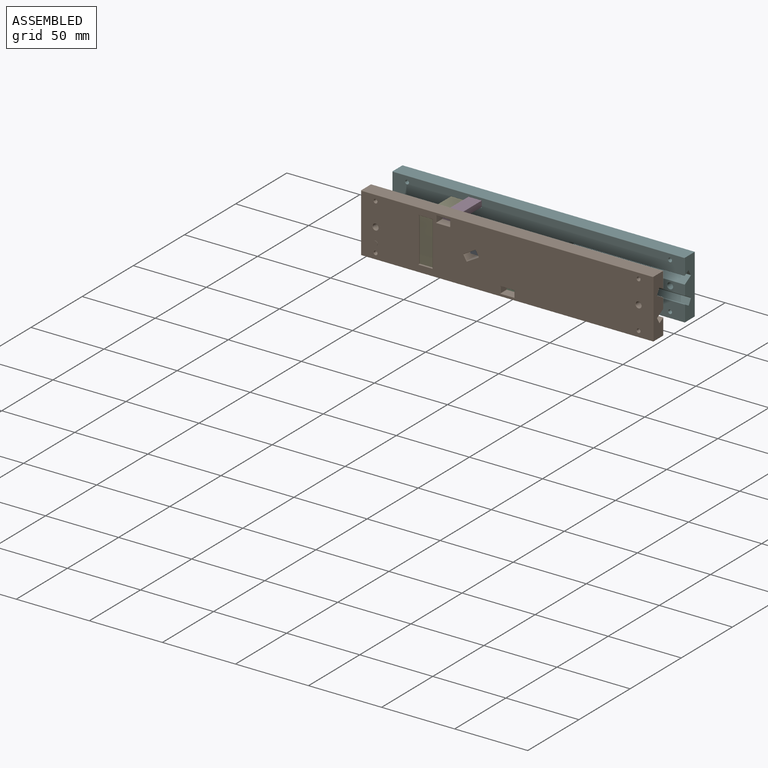
[diagram: assembled view]
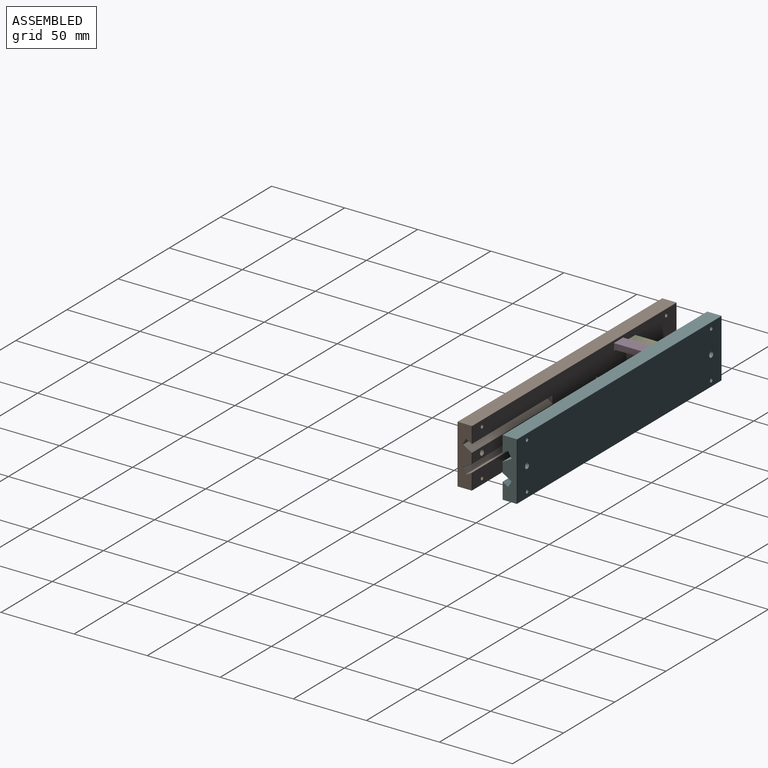
[diagram: assembled view, second angle]
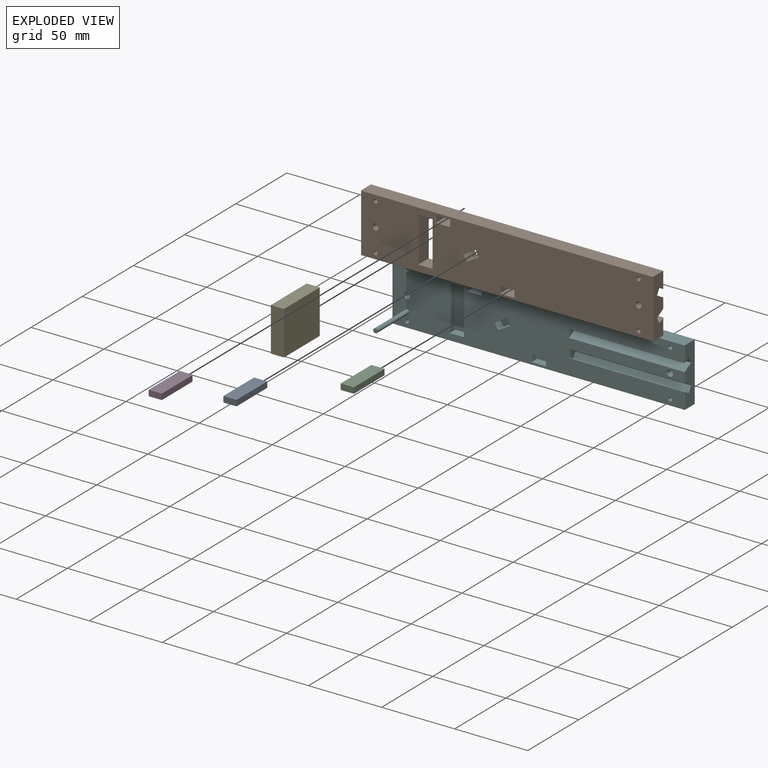
[diagram: exploded view]
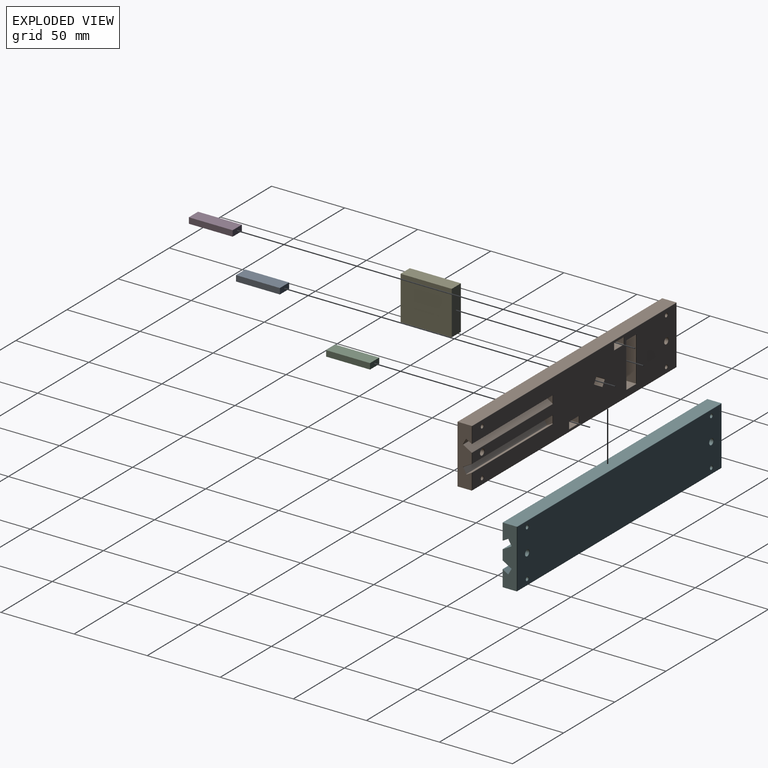
[diagram: exploded view, second angle]
ASSEMBLY  parts=6 mates=5
PART A: 6 faces, bbox 30x9x4 mm
  f0: plane 9x4mm, normal (1,0,0), area 36mm2, adj f1,f3,f4,f5
  f1: plane 30x9mm, normal (0,0,1), area 270mm2, adj f0,f2,f4,f5
  f2: plane 9x4mm, normal (-1,0,0), area 36mm2, adj f1,f3,f4,f5
  f3: plane 30x9mm, normal (0,0,-1), area 270mm2, adj f0,f2,f4,f5
  f4: plane 30x4mm, normal (0,-1,0), area 120mm2, adj f0,f1,f2,f3
  f5: plane 30x4mm, normal (0,1,0), area 120mm2, adj f0,f1,f2,f3
PART B: 182 faces, bbox 200x10.2x40 mm
  f0: plane 40x9.6mm, normal (1,0,0), area 327.9mm2, adj f3,f10,f39,f40,f47,f92,f151,f155
  f1: plane 199.6x39.6mm, normal (0,1,0), area 6501.9mm2, adj f36,f37,f38,f39,f40,f41,f42,f43
  f2: plane 199.6x39.6mm, normal (0,-1,0), area 7388.8mm2, adj f70,f71,f72,f73,f74,f75,f76,f77
  f3: plane 200x9.6mm, normal (0,0,1), area 1920mm2, adj f0,f4,f42,f91
  f4: plane 40x9.6mm, normal (-1,0,0), area 384mm2, adj f3,f10,f44,f93
  f5: cylinder r=1.25mm len=9.6mm, axis (0,-1,0), area 75.4mm2, adj f64,f86
  f6: cylinder r=1.25mm len=9.6mm, axis (0,-1,0), area 75.4mm2, adj f65,f87
  f7: cylinder r=1.25mm len=9.6mm, axis (0,-1,0), area 75.4mm2, adj f66,f88
  f8: cylinder r=2mm len=9.6mm, axis (0,-1,0), area 120.6mm2, adj f67,f89
  f9: cylinder r=2mm len=9.6mm, axis (0,-1,0), area 120.6mm2, adj f68,f90
  f10: plane 200x9.6mm, normal (0,0,-1), area 1920mm2, adj f0,f4,f46,f94
  f11: cylinder r=1.25mm len=9.6mm, axis (0,-1,0), area 75.4mm2, adj f69,f95
  f12: plane 9.6x4.1mm, normal (-1,0,0), area 39.4mm2, adj f63,f85,f139,f142
  f13: plane 9.6x9.1mm, normal (0,0,-1), area 87.4mm2, adj f62,f84,f136,f142
  f14: plane 9.6x4.1mm, normal (1,0,0), area 39.4mm2, adj f60,f82,f133,f136
  f15: plane 9.6x9.1mm, normal (0,0,1), area 87.4mm2, adj f61,f83,f133,f139
  f16: plane 9.6x3.55mm, normal (-0.87,0,-0.5), area 39.4mm2, adj f59,f81,f127,f130
  f17: plane 9.6x7.88mm, normal (0.5,0,-0.87), area 87.4mm2, adj f57,f79,f124,f130
  f18: plane 9.6x3.55mm, normal (0.87,0,0.5), area 39.4mm2, adj f56,f78,f121,f124
  f19: plane 9.6x7.88mm, normal (-0.5,0,0.87), area 87.4mm2, adj f58,f80,f121,f127
  f20: plane 9.6x4.1mm, normal (-1,0,0), area 39.4mm2, adj f55,f77,f115,f118
  f21: plane 9.6x9.1mm, normal (0,0,-1), area 87.4mm2, adj f54,f76,f112,f118
  f22: plane 9.6x4.1mm, normal (1,0,0), area 39.4mm2, adj f52,f74,f109,f112
  f23: plane 9.6x9.1mm, normal (0,0,1), area 87.4mm2, adj f53,f75,f109,f115
  f24: plane 30.1x9.6mm, normal (-1,0,0), area 289mm2, adj f51,f73,f103,f106
  f25: plane 9.6x9.1mm, normal (0,0,-1), area 87.4mm2, adj f50,f72,f100,f106
  f26: plane 30.1x9.6mm, normal (1,0,0), area 289mm2, adj f48,f70,f97,f100
  f27: plane 9.6x9.1mm, normal (0,0,1), area 87.4mm2, adj f49,f71,f97,f103
  f28: plane 78.6x3.55mm, normal (0,0.87,-0.5), area 322.3mm2, adj f152,f153,f157,f158
  f29: plane 78.65x5.85mm, normal (0,0.5,0.87), area 531.1mm2, adj f37,f150,f154,f158,f160
  f30: plane 78.6x3.4mm, normal (0,-0.5,-0.87), area 308.7mm2, adj f38,f147,f151,f152
  f31: plane 6.81x5.65mm, normal (1,0,0), area 21.9mm2, adj f36,f145,f147,f153,f154
  f32: plane 78.65x5.85mm, normal (0,0.5,-0.87), area 531.1mm2, adj f41,f167,f169,f175,f178
  f33: plane 78.6x3.55mm, normal (0,0.87,0.5), area 322.3mm2, adj f170,f171,f175,f176
  f34: plane 78.6x3.4mm, normal (0,-0.5,0.87), area 308.7mm2, adj f45,f165,f171,f172
  f35: plane 6.81x5.65mm, normal (1,0,0), area 21.9mm2, adj f43,f163,f165,f169,f170
  f36: cylinder r=0.2mm len=5.66mm, axis (0,0,1), area 1.6mm2, adj f1,f31,f144,f148,f150
  f37: cylinder r=0.2mm len=79mm, axis (1,0,0), area 16.5mm2, adj f1,f29,f148,f161
  f38: cylinder r=0.2mm len=79mm, axis (-1,0,0), area 33mm2, adj f1,f30,f144,f145,f146
  f39: cylinder r=0.2mm len=6.7mm, axis (0,0,-1), area 2.1mm2, adj f0,f1,f161,f179
  f40: cylinder r=0.2mm len=10.99mm, axis (0,0,-1), area 3.4mm2, adj f0,f1,f42,f146
  f41: cylinder r=0.2mm len=79mm, axis (-1,0,0), area 16.5mm2, adj f1,f32,f164,f179
  f42: cylinder r=0.2mm len=200mm, axis (1,0,0), area 62.8mm2, adj f1,f3,f40,f44
  f43: cylinder r=0.2mm len=5.66mm, axis (0,0,1), area 1.6mm2, adj f1,f35,f162,f164,f167
  f44: cylinder r=0.2mm len=40mm, axis (0,0,1), area 12.5mm2, adj f1,f4,f42,f46
  f45: cylinder r=0.2mm len=79mm, axis (1,0,0), area 33mm2, adj f1,f34,f162,f163,f166
  f46: cylinder r=0.2mm len=200mm, axis (-1,0,0), area 62.8mm2, adj f1,f10,f44,f47
  f47: cylinder r=0.2mm len=10.99mm, axis (0,0,-1), area 3.4mm2, adj f0,f1,f46,f166
  f48: cylinder r=0.2mm len=30.9mm, axis (0,0,-1), area 9.5mm2, adj f1,f26,f96,f99
  f49: cylinder r=0.2mm len=9.9mm, axis (1,0,0), area 3mm2, adj f1,f27,f96,f102
  f50: cylinder r=0.2mm len=9.9mm, axis (-1,0,0), area 3mm2, adj f1,f25,f99,f105
  f51: cylinder r=0.2mm len=30.9mm, axis (0,0,1), area 9.5mm2, adj f1,f24,f102,f105
  f52: cylinder r=0.2mm len=4.9mm, axis (0,0,-1), area 1.4mm2, adj f1,f22,f108,f111
  f53: cylinder r=0.2mm len=9.9mm, axis (1,0,0), area 3mm2, adj f1,f23,f108,f114
  f54: cylinder r=0.2mm len=9.9mm, axis (-1,0,0), area 3mm2, adj f1,f21,f111,f117
  f55: cylinder r=0.2mm len=4.9mm, axis (0,0,1), area 1.4mm2, adj f1,f20,f114,f117
  f56: cylinder r=0.2mm len=4.34mm, axis (0.5,0,-0.87), area 1.4mm2, adj f1,f18,f120,f123
  f57: cylinder r=0.2mm len=8.67mm, axis (-0.87,0,-0.5), area 3mm2, adj f1,f17,f123,f129
  f58: cylinder r=0.2mm len=8.67mm, axis (0.87,0,0.5), area 3mm2, adj f1,f19,f120,f126
  f59: cylinder r=0.2mm len=4.34mm, axis (-0.5,0,0.87), area 1.4mm2, adj f1,f16,f126,f129
  f60: cylinder r=0.2mm len=4.9mm, axis (0,0,-1), area 1.4mm2, adj f1,f14,f132,f135
  f61: cylinder r=0.2mm len=9.9mm, axis (1,0,0), area 3mm2, adj f1,f15,f132,f138
  f62: cylinder r=0.2mm len=9.9mm, axis (-1,0,0), area 3mm2, adj f1,f13,f135,f141
  f63: cylinder r=0.2mm len=4.9mm, axis (0,0,1), area 1.4mm2, adj f1,f12,f138,f141
  f64: torus R=1.45mm, axis (0,-1,0), area 2.6mm2, adj f1,f5
  f65: torus R=1.45mm, axis (0,-1,0), area 2.6mm2, adj f1,f6
  f66: torus R=1.45mm, axis (0,-1,0), area 2.6mm2, adj f1,f7
  f67: torus R=2.2mm, axis (0,-1,0), area 4.1mm2, adj f1,f8
  f68: torus R=2.2mm, axis (0,-1,0), area 4.1mm2, adj f1,f9
  f69: torus R=1.45mm, axis (0,-1,0), area 2.6mm2, adj f1,f11
  f70: cylinder r=0.2mm len=30.9mm, axis (0,0,1), area 9.5mm2, adj f2,f26,f98,f101
  f71: cylinder r=0.2mm len=9.9mm, axis (-1,0,0), area 3mm2, adj f2,f27,f98,f104
  f72: cylinder r=0.2mm len=9.9mm, axis (1,0,0), area 3mm2, adj f2,f25,f101,f107
  f73: cylinder r=0.2mm len=30.9mm, axis (0,0,-1), area 9.5mm2, adj f2,f24,f104,f107
  f74: cylinder r=0.2mm len=4.9mm, axis (0,0,1), area 1.4mm2, adj f2,f22,f110,f113
  f75: cylinder r=0.2mm len=9.9mm, axis (-1,0,0), area 3mm2, adj f2,f23,f110,f116
  f76: cylinder r=0.2mm len=9.9mm, axis (1,0,0), area 3mm2, adj f2,f21,f113,f119
  f77: cylinder r=0.2mm len=4.9mm, axis (0,0,-1), area 1.4mm2, adj f2,f20,f116,f119
  f78: cylinder r=0.2mm len=4.34mm, axis (-0.5,0,0.87), area 1.4mm2, adj f2,f18,f122,f125
  f79: cylinder r=0.2mm len=8.67mm, axis (0.87,0,0.5), area 3mm2, adj f2,f17,f125,f131
  f80: cylinder r=0.2mm len=8.67mm, axis (-0.87,0,-0.5), area 3mm2, adj f2,f19,f122,f128
  f81: cylinder r=0.2mm len=4.34mm, axis (0.5,0,-0.87), area 1.4mm2, adj f2,f16,f128,f131
  f82: cylinder r=0.2mm len=4.9mm, axis (0,0,1), area 1.4mm2, adj f2,f14,f134,f137
  f83: cylinder r=0.2mm len=9.9mm, axis (-1,0,0), area 3mm2, adj f2,f15,f134,f140
  f84: cylinder r=0.2mm len=9.9mm, axis (1,0,0), area 3mm2, adj f2,f13,f137,f143
  f85: cylinder r=0.2mm len=4.9mm, axis (0,0,-1), area 1.4mm2, adj f2,f12,f140,f143
  f86: torus R=1.45mm, axis (0,-1,0), area 2.6mm2, adj f2,f5
  f87: torus R=1.45mm, axis (0,-1,0), area 2.6mm2, adj f2,f6
  f88: torus R=1.45mm, axis (0,-1,0), area 2.6mm2, adj f2,f7
  f89: torus R=2.2mm, axis (0,-1,0), area 4.1mm2, adj f2,f8
  f90: torus R=2.2mm, axis (0,-1,0), area 4.1mm2, adj f2,f9
  f91: cylinder r=0.2mm len=200mm, axis (-1,0,0), area 62.8mm2, adj f2,f3,f92,f93
  f92: cylinder r=0.2mm len=40mm, axis (0,0,1), area 12.5mm2, adj f0,f2,f91,f94
  f93: cylinder r=0.2mm len=40mm, axis (0,0,-1), area 12.5mm2, adj f2,f4,f91,f94
  f94: cylinder r=0.2mm len=200mm, axis (1,0,0), area 62.8mm2, adj f2,f10,f92,f93
  f95: torus R=1.45mm, axis (0,-1,0), area 2.6mm2, adj f2,f11
  f96: bspline ~0.4x0.4mm, area 0.1mm2, adj f48,f49,f97
  f97: cylinder r=0.2mm len=9.6mm, axis (0,1,0), area 3mm2, adj f26,f27,f96,f98
  f98: bspline ~0.4x0.4mm, area 0.1mm2, adj f70,f71,f97
  f99: bspline ~0.4x0.4mm, area 0.1mm2, adj f48,f50,f100
  f100: cylinder r=0.2mm len=9.6mm, axis (0,-1,0), area 3mm2, adj f25,f26,f99,f101
  f101: bspline ~0.4x0.4mm, area 0.1mm2, adj f70,f72,f100
  f102: bspline ~0.4x0.4mm, area 0.1mm2, adj f49,f51,f103
  f103: cylinder r=0.2mm len=9.6mm, axis (0,-1,0), area 3mm2, adj f24,f27,f102,f104
  f104: bspline ~0.4x0.4mm, area 0.1mm2, adj f71,f73,f103
  f105: bspline ~0.4x0.4mm, area 0.1mm2, adj f50,f51,f106
  f106: cylinder r=0.2mm len=9.6mm, axis (0,1,0), area 3mm2, adj f24,f25,f105,f107
  f107: bspline ~0.4x0.4mm, area 0.1mm2, adj f72,f73,f106
  f108: bspline ~0.4x0.4mm, area 0.1mm2, adj f52,f53,f109
  f109: cylinder r=0.2mm len=9.6mm, axis (0,1,0), area 3mm2, adj f22,f23,f108,f110
  f110: bspline ~0.4x0.4mm, area 0.1mm2, adj f74,f75,f109
  f111: bspline ~0.4x0.4mm, area 0.1mm2, adj f52,f54,f112
  f112: cylinder r=0.2mm len=9.6mm, axis (0,-1,0), area 3mm2, adj f21,f22,f111,f113
  f113: bspline ~0.4x0.4mm, area 0.1mm2, adj f74,f76,f112
  f114: bspline ~0.4x0.4mm, area 0.1mm2, adj f53,f55,f115
  f115: cylinder r=0.2mm len=9.6mm, axis (0,-1,0), area 3mm2, adj f20,f23,f114,f116
  f116: bspline ~0.4x0.4mm, area 0.1mm2, adj f75,f77,f115
  f117: bspline ~0.4x0.4mm, area 0.1mm2, adj f54,f55,f118
  f118: cylinder r=0.2mm len=9.6mm, axis (0,1,0), area 3mm2, adj f20,f21,f117,f119
  f119: bspline ~0.4x0.4mm, area 0.1mm2, adj f76,f77,f118
  f120: bspline ~0.45x0.27mm, area 0.1mm2, adj f56,f58,f121
  f121: cylinder r=0.2mm len=9.6mm, axis (0,-1,0), area 3mm2, adj f18,f19,f120,f122
  f122: bspline ~0.45x0.27mm, area 0.1mm2, adj f78,f80,f121
  f123: bspline ~0.45x0.27mm, area 0.1mm2, adj f56,f57,f124
  f124: cylinder r=0.2mm len=9.6mm, axis (0,-1,0), area 3mm2, adj f17,f18,f123,f125
  f125: bspline ~0.45x0.27mm, area 0.1mm2, adj f78,f79,f124
  f126: bspline ~0.45x0.27mm, area 0.1mm2, adj f58,f59,f127
  f127: cylinder r=0.2mm len=9.6mm, axis (0,-1,0), area 3mm2, adj f16,f19,f126,f128
  f128: bspline ~0.45x0.27mm, area 0.1mm2, adj f80,f81,f127
  f129: bspline ~0.45x0.27mm, area 0.1mm2, adj f57,f59,f130
  f130: cylinder r=0.2mm len=9.6mm, axis (0,-1,0), area 3mm2, adj f16,f17,f129,f131
  f131: bspline ~0.45x0.27mm, area 0.1mm2, adj f79,f81,f130
  f132: bspline ~0.4x0.4mm, area 0.1mm2, adj f60,f61,f133
  f133: cylinder r=0.2mm len=9.6mm, axis (0,1,0), area 3mm2, adj f14,f15,f132,f134
  f134: bspline ~0.4x0.4mm, area 0.1mm2, adj f82,f83,f133
  f135: bspline ~0.4x0.4mm, area 0.1mm2, adj f60,f62,f136
  f136: cylinder r=0.2mm len=9.6mm, axis (0,-1,0), area 3mm2, adj f13,f14,f135,f137
  f137: bspline ~0.4x0.4mm, area 0.1mm2, adj f82,f84,f136
  f138: bspline ~0.4x0.4mm, area 0.1mm2, adj f61,f63,f139
  f139: cylinder r=0.2mm len=9.6mm, axis (0,-1,0), area 3mm2, adj f12,f15,f138,f140
  f140: bspline ~0.4x0.4mm, area 0.1mm2, adj f83,f85,f139
  f141: bspline ~0.4x0.4mm, area 0.1mm2, adj f62,f63,f142
  f142: cylinder r=0.2mm len=9.6mm, axis (0,1,0), area 3mm2, adj f12,f13,f141,f143
  f143: bspline ~0.4x0.4mm, area 0.1mm2, adj f84,f85,f142
  f144: bspline ~0.4x0.4mm, area 0.1mm2, adj f36,f38,f145
  f145: torus R=0.4mm, axis (1,0,0), area 0mm2, adj f31,f38,f144,f147
  f146: sphere r=0.2mm, area 0.1mm2, adj f38,f40,f151
  f147: cylinder r=0.2mm len=3.5mm, axis (0,-0.87,0.5), area 1.2mm2, adj f30,f31,f145,f149
  f148: bspline ~0.36x0.36mm, area 0mm2, adj f36,f37,f150
  f149: sphere r=0.2mm, area 0.1mm2, adj f147,f152,f153
  f150: bspline ~0.36x0.33mm, area 0.1mm2, adj f29,f36,f148,f154
  f151: cylinder r=0.2mm len=3.5mm, axis (0,-0.87,0.5), area 1.2mm2, adj f0,f30,f146,f155
  f152: cylinder r=0.2mm len=78.6mm, axis (-1,0,0), area 24.7mm2, adj f28,f30,f149,f155
  f153: cylinder r=0.2mm len=3.65mm, axis (0,-0.5,-0.87), area 1.3mm2, adj f28,f31,f149,f156
  f154: cylinder r=0.2mm len=5.75mm, axis (0,0.87,-0.5), area 2.1mm2, adj f29,f31,f150,f156
  f155: torus R=0.4mm, axis (-1,0,0), area 0.1mm2, adj f0,f151,f152,f157
  f156: sphere r=0.2mm, area 0.1mm2, adj f153,f154,f158
  f157: cylinder r=0.2mm len=3.65mm, axis (0,-0.5,-0.87), area 1.3mm2, adj f0,f28,f155,f159
  f158: cylinder r=0.2mm len=78.6mm, axis (1,0,0), area 24.7mm2, adj f28,f29,f156,f159
  f159: torus R=0.4mm, axis (-1,0,0), area 0.1mm2, adj f0,f157,f158,f160
  f160: cylinder r=0.2mm len=5.95mm, axis (0,0.87,-0.5), area 2.1mm2, adj f0,f29,f159,f161
  f161: sphere r=0.2mm, area 0mm2, adj f37,f39,f160
  f162: bspline ~0.4x0.4mm, area 0.1mm2, adj f43,f45,f163
  f163: torus R=0.4mm, axis (1,0,0), area 0mm2, adj f35,f45,f162,f165
  f164: bspline ~0.36x0.36mm, area 0mm2, adj f41,f43,f167
  f165: cylinder r=0.2mm len=3.5mm, axis (0,0.87,0.5), area 1.2mm2, adj f34,f35,f163,f168
  f166: sphere r=0.2mm, area 0.1mm2, adj f45,f47,f172
  f167: bspline ~0.3x0.23mm, area 0.1mm2, adj f32,f43,f164,f169
  f168: sphere r=0.2mm, area 0.1mm2, adj f165,f170,f171
  f169: cylinder r=0.2mm len=5.75mm, axis (0,-0.87,-0.5), area 2.1mm2, adj f32,f35,f167,f173
  f170: cylinder r=0.2mm len=3.65mm, axis (0,0.5,-0.87), area 1.3mm2, adj f33,f35,f168,f173
  f171: cylinder r=0.2mm len=78.6mm, axis (-1,0,0), area 24.7mm2, adj f33,f34,f168,f174
  f172: cylinder r=0.2mm len=3.5mm, axis (0,0.87,0.5), area 1.2mm2, adj f0,f34,f166,f174
  f173: sphere r=0.2mm, area 0.1mm2, adj f169,f170,f175
  f174: torus R=0.4mm, axis (-1,0,0), area 0.1mm2, adj f0,f171,f172,f176
  f175: cylinder r=0.2mm len=78.6mm, axis (1,0,0), area 24.7mm2, adj f32,f33,f173,f177
  f176: cylinder r=0.2mm len=3.65mm, axis (0,0.5,-0.87), area 1.3mm2, adj f0,f33,f174,f177
  f177: torus R=0.4mm, axis (-1,0,0), area 0.1mm2, adj f0,f175,f176,f178
  f178: cylinder r=0.2mm len=5.95mm, axis (0,-0.87,-0.5), area 2.1mm2, adj f0,f32,f177,f179
  f179: sphere r=0.2mm, area 0mm2, adj f39,f41,f178
  f180: cylinder r=1.5mm len=3mm, axis (0,1,0), area 1.9mm2, adj f2,f181
  f181: plane 3x3mm, normal (0,-1,0), area 7.1mm2, adj f180
PART C: same geometry as A
PART D: same geometry as A
PART E: 6 faces, bbox 35x9x30 mm
  f0: plane 30x9mm, normal (1,0,0), area 270mm2, adj f1,f3,f4,f5
  f1: plane 35x9mm, normal (0,0,1), area 315mm2, adj f0,f2,f4,f5
  f2: plane 30x9mm, normal (-1,0,0), area 270mm2, adj f1,f3,f4,f5
  f3: plane 35x9mm, normal (0,0,-1), area 315mm2, adj f0,f2,f4,f5
  f4: plane 35x30mm, normal (0,-1,0), area 1050mm2, adj f0,f1,f2,f3
  f5: plane 35x30mm, normal (0,1,0), area 1050mm2, adj f0,f1,f2,f3
PART F: 186 faces, bbox 200x41x40 mm
  f0: plane 199.6x39.6mm, normal (0,-1,0), area 6494.9mm2, adj f50,f51,f52,f53,f54,f55,f56,f57
  f1: plane 40x9.6mm, normal (1,0,0), area 327.9mm2, adj f2,f9,f46,f53,f54,f61,f155,f159
  f2: plane 200x9.6mm, normal (0,0,1), area 1920mm2, adj f1,f3,f45,f56
  f3: plane 40x9.6mm, normal (-1,0,0), area 384mm2, adj f2,f9,f47,f58
  f4: cylinder r=1.25mm len=9.6mm, axis (0,-1,0), area 75.4mm2, adj f40,f78
  f5: cylinder r=1.25mm len=9.6mm, axis (0,-1,0), area 75.4mm2, adj f41,f79
  f6: cylinder r=1.25mm len=9.6mm, axis (0,-1,0), area 75.4mm2, adj f42,f80
  f7: cylinder r=2mm len=9.6mm, axis (0,-1,0), area 120.6mm2, adj f43,f81
  f8: cylinder r=2mm len=9.6mm, axis (0,-1,0), area 120.6mm2, adj f44,f82
  f9: plane 200x9.6mm, normal (0,0,-1), area 1920mm2, adj f1,f3,f48,f60
  f10: cylinder r=1.25mm len=9.6mm, axis (0,-1,0), area 75.4mm2, adj f49,f83
  f11: plane 199.6x39.6mm, normal (0,1,0), area 7847.3mm2, adj f40,f41,f42,f43,f44,f45,f46,f47
  f12: plane 4.6x4.1mm, normal (-1,0,0), area 18.9mm2, adj f77,f133,f139,f140
  f13: plane 9.1x4.6mm, normal (0,0,-1), area 41.9mm2, adj f76,f133,f137,f138
  f14: plane 4.6x4.1mm, normal (1,0,0), area 18.9mm2, adj f74,f137,f143,f146
  f15: plane 9.1x4.6mm, normal (0,0,1), area 41.9mm2, adj f75,f140,f144,f146
  f16: plane 9.1x4.1mm, normal (0,-1,0), area 37.3mm2, adj f138,f139,f143,f144
  f17: plane 4.6x3.55mm, normal (-0.87,0,-0.5), area 18.9mm2, adj f73,f117,f123,f124
  f18: plane 7.88x4.6mm, normal (0.5,0,-0.87), area 41.9mm2, adj f71,f117,f121,f122
  f19: plane 4.6x3.55mm, normal (0.87,0,0.5), area 18.9mm2, adj f70,f121,f127,f130
  f20: plane 7.88x4.6mm, normal (-0.5,0,0.87), area 41.9mm2, adj f72,f124,f128,f130
  f21: plane 9.93x8.1mm, normal (0,-1,0), area 37.3mm2, adj f122,f123,f127,f128
  f22: plane 4.6x4.1mm, normal (-1,0,0), area 18.9mm2, adj f69,f101,f107,f108
  f23: plane 9.1x4.6mm, normal (0,0,-1), area 41.9mm2, adj f68,f101,f105,f106
  f24: plane 4.6x4.1mm, normal (1,0,0), area 18.9mm2, adj f66,f105,f111,f114
  f25: plane 9.1x4.6mm, normal (0,0,1), area 41.9mm2, adj f67,f108,f112,f114
  f26: plane 9.1x4.1mm, normal (0,-1,0), area 37.3mm2, adj f106,f107,f111,f112
  f27: plane 30.1x4.6mm, normal (-1,0,0), area 138.5mm2, adj f65,f85,f91,f92
  f28: plane 9.1x4.6mm, normal (0,0,-1), area 41.9mm2, adj f64,f85,f89,f90
  f29: plane 30.1x4.6mm, normal (1,0,0), area 138.5mm2, adj f62,f89,f95,f98
  f30: plane 9.1x4.6mm, normal (0,0,1), area 41.9mm2, adj f63,f92,f96,f98
  f31: plane 30.1x9.1mm, normal (0,-1,0), area 273.9mm2, adj f90,f91,f95,f96
  f32: plane 78.6x3.55mm, normal (0,-0.87,-0.5), area 322.3mm2, adj f156,f157,f161,f162
  f33: plane 78.6x3.4mm, normal (0,0.5,-0.87), area 308.7mm2, adj f52,f158,f162,f164
  f34: plane 78.65x5.85mm, normal (0,-0.5,0.87), area 531.1mm2, adj f51,f149,f151,f155,f156
  f35: plane 6.81x5.65mm, normal (1,0,0), area 21.9mm2, adj f50,f151,f154,f157,f158
  f36: plane 78.6x3.4mm, normal (0,0.5,0.87), area 308.7mm2, adj f59,f173,f179,f182
  f37: plane 78.6x3.55mm, normal (0,-0.87,0.5), area 322.3mm2, adj f174,f175,f179,f180
  f38: plane 78.65x5.85mm, normal (0,-0.5,-0.87), area 531.1mm2, adj f55,f167,f169,f175,f176
  f39: plane 6.81x5.65mm, normal (1,0,0), area 21.9mm2, adj f57,f169,f171,f173,f174
  f40: torus R=1.45mm, axis (0,-1,0), area 2.6mm2, adj f4,f11
  f41: torus R=1.45mm, axis (0,-1,0), area 2.6mm2, adj f5,f11
  f42: torus R=1.45mm, axis (0,-1,0), area 2.6mm2, adj f6,f11
  f43: torus R=2.2mm, axis (0,-1,0), area 4.1mm2, adj f7,f11
  f44: torus R=2.2mm, axis (0,-1,0), area 4.1mm2, adj f8,f11
  f45: cylinder r=0.2mm len=200mm, axis (1,0,0), area 62.8mm2, adj f2,f11,f46,f47
  f46: cylinder r=0.2mm len=40mm, axis (0,0,-1), area 12.5mm2, adj f1,f11,f45,f48
  f47: cylinder r=0.2mm len=40mm, axis (0,0,1), area 12.5mm2, adj f3,f11,f45,f48
  f48: cylinder r=0.2mm len=200mm, axis (-1,0,0), area 62.8mm2, adj f9,f11,f46,f47
  f49: torus R=1.45mm, axis (0,-1,0), area 2.6mm2, adj f10,f11
  f50: cylinder r=0.2mm len=5.66mm, axis (0,0,-1), area 1.6mm2, adj f0,f35,f148,f149,f152
  f51: cylinder r=0.2mm len=79mm, axis (1,0,0), area 16.5mm2, adj f0,f34,f148,f150
  f52: cylinder r=0.2mm len=79mm, axis (-1,0,0), area 33mm2, adj f0,f33,f152,f154,f165
  f53: cylinder r=0.2mm len=6.7mm, axis (0,0,1), area 2.1mm2, adj f0,f1,f150,f170
  f54: cylinder r=0.2mm len=10.99mm, axis (0,0,1), area 3.4mm2, adj f0,f1,f56,f165
  f55: cylinder r=0.2mm len=79mm, axis (-1,0,0), area 16.5mm2, adj f0,f38,f166,f170
  f56: cylinder r=0.2mm len=200mm, axis (-1,0,0), area 62.8mm2, adj f0,f2,f54,f58
  f57: cylinder r=0.2mm len=5.66mm, axis (0,0,-1), area 1.6mm2, adj f0,f39,f166,f167,f168
  f58: cylinder r=0.2mm len=40mm, axis (0,0,-1), area 12.5mm2, adj f0,f3,f56,f60
  f59: cylinder r=0.2mm len=79mm, axis (1,0,0), area 33mm2, adj f0,f36,f168,f171,f183
  f60: cylinder r=0.2mm len=200mm, axis (1,0,0), area 62.8mm2, adj f0,f9,f58,f61
  f61: cylinder r=0.2mm len=10.99mm, axis (0,0,1), area 3.4mm2, adj f0,f1,f60,f183
  f62: cylinder r=0.2mm len=30.9mm, axis (0,0,1), area 9.5mm2, adj f0,f29,f86,f99
  f63: cylinder r=0.2mm len=9.9mm, axis (-1,0,0), area 3mm2, adj f0,f30,f88,f99
  f64: cylinder r=0.2mm len=9.9mm, axis (1,0,0), area 3mm2, adj f0,f28,f84,f86
  f65: cylinder r=0.2mm len=30.9mm, axis (0,0,-1), area 9.5mm2, adj f0,f27,f84,f88
  f66: cylinder r=0.2mm len=4.9mm, axis (0,0,1), area 1.4mm2, adj f0,f24,f102,f115
  f67: cylinder r=0.2mm len=9.9mm, axis (-1,0,0), area 3mm2, adj f0,f25,f104,f115
  f68: cylinder r=0.2mm len=9.9mm, axis (1,0,0), area 3mm2, adj f0,f23,f100,f102
  f69: cylinder r=0.2mm len=4.9mm, axis (0,0,-1), area 1.4mm2, adj f0,f22,f100,f104
  f70: cylinder r=0.2mm len=4.34mm, axis (-0.5,0,0.87), area 1.4mm2, adj f0,f19,f118,f131
  f71: cylinder r=0.2mm len=8.67mm, axis (0.87,0,0.5), area 3mm2, adj f0,f18,f116,f118
  f72: cylinder r=0.2mm len=8.67mm, axis (-0.87,0,-0.5), area 3mm2, adj f0,f20,f120,f131
  f73: cylinder r=0.2mm len=4.34mm, axis (0.5,0,-0.87), area 1.4mm2, adj f0,f17,f116,f120
  f74: cylinder r=0.2mm len=4.9mm, axis (0,0,1), area 1.4mm2, adj f0,f14,f134,f147
  f75: cylinder r=0.2mm len=9.9mm, axis (-1,0,0), area 3mm2, adj f0,f15,f136,f147
  f76: cylinder r=0.2mm len=9.9mm, axis (1,0,0), area 3mm2, adj f0,f13,f132,f134
  f77: cylinder r=0.2mm len=4.9mm, axis (0,0,-1), area 1.4mm2, adj f0,f12,f132,f136
  f78: torus R=1.45mm, axis (0,-1,0), area 2.6mm2, adj f0,f4
  f79: torus R=1.45mm, axis (0,-1,0), area 2.6mm2, adj f0,f5
  f80: torus R=1.45mm, axis (0,-1,0), area 2.6mm2, adj f0,f6
  f81: torus R=2.2mm, axis (0,-1,0), area 4.1mm2, adj f0,f7
  f82: torus R=2.2mm, axis (0,-1,0), area 4.1mm2, adj f0,f8
  f83: torus R=1.45mm, axis (0,-1,0), area 2.6mm2, adj f0,f10
  f84: bspline ~0.4x0.4mm, area 0.1mm2, adj f64,f65,f85
  f85: cylinder r=0.2mm len=4.6mm, axis (0,1,0), area 1.4mm2, adj f27,f28,f84,f87
  f86: bspline ~0.4x0.4mm, area 0.1mm2, adj f62,f64,f89
  f87: sphere r=0.2mm, area 0.1mm2, adj f85,f90,f91
  f88: bspline ~0.4x0.4mm, area 0.1mm2, adj f63,f65,f92
  f89: cylinder r=0.2mm len=4.6mm, axis (0,-1,0), area 1.4mm2, adj f28,f29,f86,f93
  f90: cylinder r=0.2mm len=9.1mm, axis (1,0,0), area 2.9mm2, adj f28,f31,f87,f93
  f91: cylinder r=0.2mm len=30.1mm, axis (0,0,-1), area 9.5mm2, adj f27,f31,f87,f94
  f92: cylinder r=0.2mm len=4.6mm, axis (0,-1,0), area 1.4mm2, adj f27,f30,f88,f94
  f93: sphere r=0.2mm, area 0.1mm2, adj f89,f90,f95
  f94: sphere r=0.2mm, area 0.1mm2, adj f91,f92,f96
  f95: cylinder r=0.2mm len=30.1mm, axis (0,0,1), area 9.5mm2, adj f29,f31,f93,f97
  f96: cylinder r=0.2mm len=9.1mm, axis (-1,0,0), area 2.9mm2, adj f30,f31,f94,f97
  f97: sphere r=0.2mm, area 0.1mm2, adj f95,f96,f98
  f98: cylinder r=0.2mm len=4.6mm, axis (0,1,0), area 1.4mm2, adj f29,f30,f97,f99
  f99: bspline ~0.4x0.4mm, area 0.1mm2, adj f62,f63,f98
  f100: bspline ~0.4x0.4mm, area 0.1mm2, adj f68,f69,f101
  f101: cylinder r=0.2mm len=4.6mm, axis (0,1,0), area 1.4mm2, adj f22,f23,f100,f103
  f102: bspline ~0.4x0.4mm, area 0.1mm2, adj f66,f68,f105
  f103: sphere r=0.2mm, area 0.1mm2, adj f101,f106,f107
  f104: bspline ~0.4x0.4mm, area 0.1mm2, adj f67,f69,f108
  f105: cylinder r=0.2mm len=4.6mm, axis (0,-1,0), area 1.4mm2, adj f23,f24,f102,f109
  f106: cylinder r=0.2mm len=9.1mm, axis (1,0,0), area 2.9mm2, adj f23,f26,f103,f109
  f107: cylinder r=0.2mm len=4.1mm, axis (0,0,-1), area 1.3mm2, adj f22,f26,f103,f110
  f108: cylinder r=0.2mm len=4.6mm, axis (0,-1,0), area 1.4mm2, adj f22,f25,f104,f110
  f109: sphere r=0.2mm, area 0.1mm2, adj f105,f106,f111
  f110: sphere r=0.2mm, area 0.1mm2, adj f107,f108,f112
  f111: cylinder r=0.2mm len=4.1mm, axis (0,0,1), area 1.3mm2, adj f24,f26,f109,f113
  f112: cylinder r=0.2mm len=9.1mm, axis (-1,0,0), area 2.9mm2, adj f25,f26,f110,f113
  f113: sphere r=0.2mm, area 0.1mm2, adj f111,f112,f114
  f114: cylinder r=0.2mm len=4.6mm, axis (0,1,0), area 1.4mm2, adj f24,f25,f113,f115
  f115: bspline ~0.4x0.4mm, area 0.1mm2, adj f66,f67,f114
  f116: bspline ~0.45x0.27mm, area 0.1mm2, adj f71,f73,f117
  f117: cylinder r=0.2mm len=4.6mm, axis (0,-1,0), area 1.4mm2, adj f17,f18,f116,f119
  f118: bspline ~0.45x0.27mm, area 0.1mm2, adj f70,f71,f121
  f119: sphere r=0.2mm, area 0.1mm2, adj f117,f122,f123
  f120: bspline ~0.45x0.27mm, area 0.1mm2, adj f72,f73,f124
  f121: cylinder r=0.2mm len=4.6mm, axis (0,-1,0), area 1.4mm2, adj f18,f19,f118,f125
  f122: cylinder r=0.2mm len=7.98mm, axis (0.87,0,0.5), area 2.9mm2, adj f18,f21,f119,f125
  f123: cylinder r=0.2mm len=3.65mm, axis (0.5,0,-0.87), area 1.3mm2, adj f17,f21,f119,f126
  f124: cylinder r=0.2mm len=4.6mm, axis (0,-1,0), area 1.4mm2, adj f17,f20,f120,f126
  f125: sphere r=0.2mm, area 0.1mm2, adj f121,f122,f127
  f126: sphere r=0.2mm, area 0.1mm2, adj f123,f124,f128
  f127: cylinder r=0.2mm len=3.65mm, axis (-0.5,0,0.87), area 1.3mm2, adj f19,f21,f125,f129
  f128: cylinder r=0.2mm len=7.98mm, axis (-0.87,0,-0.5), area 2.9mm2, adj f20,f21,f126,f129
  f129: sphere r=0.2mm, area 0.1mm2, adj f127,f128,f130
  f130: cylinder r=0.2mm len=4.6mm, axis (0,-1,0), area 1.4mm2, adj f19,f20,f129,f131
  f131: bspline ~0.45x0.27mm, area 0.1mm2, adj f70,f72,f130
  f132: bspline ~0.4x0.4mm, area 0.1mm2, adj f76,f77,f133
  f133: cylinder r=0.2mm len=4.6mm, axis (0,1,0), area 1.4mm2, adj f12,f13,f132,f135
  f134: bspline ~0.4x0.4mm, area 0.1mm2, adj f74,f76,f137
  f135: sphere r=0.2mm, area 0.1mm2, adj f133,f138,f139
  f136: bspline ~0.4x0.4mm, area 0.1mm2, adj f75,f77,f140
  f137: cylinder r=0.2mm len=4.6mm, axis (0,-1,0), area 1.4mm2, adj f13,f14,f134,f141
  f138: cylinder r=0.2mm len=9.1mm, axis (1,0,0), area 2.9mm2, adj f13,f16,f135,f141
  f139: cylinder r=0.2mm len=4.1mm, axis (0,0,-1), area 1.3mm2, adj f12,f16,f135,f142
  f140: cylinder r=0.2mm len=4.6mm, axis (0,-1,0), area 1.4mm2, adj f12,f15,f136,f142
  f141: sphere r=0.2mm, area 0.1mm2, adj f137,f138,f143
  f142: sphere r=0.2mm, area 0.1mm2, adj f139,f140,f144
  f143: cylinder r=0.2mm len=4.1mm, axis (0,0,1), area 1.3mm2, adj f14,f16,f141,f145
  f144: cylinder r=0.2mm len=9.1mm, axis (-1,0,0), area 2.9mm2, adj f15,f16,f142,f145
  f145: sphere r=0.2mm, area 0.1mm2, adj f143,f144,f146
  f146: cylinder r=0.2mm len=4.6mm, axis (0,1,0), area 1.4mm2, adj f14,f15,f145,f147
  f147: bspline ~0.4x0.4mm, area 0.1mm2, adj f74,f75,f146
  f148: bspline ~0.36x0.36mm, area 0mm2, adj f50,f51,f149
  f149: bspline ~0.3x0.23mm, area 0.1mm2, adj f34,f50,f148,f151
  f150: sphere r=0.2mm, area 0mm2, adj f51,f53,f155
  f151: cylinder r=0.2mm len=5.75mm, axis (0,0.87,0.5), area 2.1mm2, adj f34,f35,f149,f153
  f152: bspline ~0.4x0.4mm, area 0.1mm2, adj f50,f52,f154
  f153: sphere r=0.2mm, area 0.1mm2, adj f151,f156,f157
  f154: torus R=0.4mm, axis (1,0,0), area 0mm2, adj f35,f52,f152,f158
  f155: cylinder r=0.2mm len=5.95mm, axis (0,0.87,0.5), area 2.1mm2, adj f1,f34,f150,f159
  f156: cylinder r=0.2mm len=78.6mm, axis (-1,0,0), area 24.7mm2, adj f32,f34,f153,f159
  f157: cylinder r=0.2mm len=3.65mm, axis (0,-0.5,0.87), area 1.3mm2, adj f32,f35,f153,f160
  f158: cylinder r=0.2mm len=3.5mm, axis (0,-0.87,-0.5), area 1.2mm2, adj f33,f35,f154,f160
  f159: torus R=0.4mm, axis (-1,0,0), area 0.1mm2, adj f1,f155,f156,f161
  f160: sphere r=0.2mm, area 0.1mm2, adj f157,f158,f162
  f161: cylinder r=0.2mm len=3.65mm, axis (0,-0.5,0.87), area 1.3mm2, adj f1,f32,f159,f163
  f162: cylinder r=0.2mm len=78.6mm, axis (1,0,0), area 24.7mm2, adj f32,f33,f160,f163
  f163: torus R=0.4mm, axis (-1,0,0), area 0.1mm2, adj f1,f161,f162,f164
  f164: cylinder r=0.2mm len=3.5mm, axis (0,-0.87,-0.5), area 1.2mm2, adj f1,f33,f163,f165
  f165: sphere r=0.2mm, area 0.1mm2, adj f52,f54,f164
  f166: bspline ~0.36x0.36mm, area 0mm2, adj f55,f57,f167
  f167: bspline ~0.36x0.33mm, area 0.1mm2, adj f38,f57,f166,f169
  f168: bspline ~0.4x0.4mm, area 0.1mm2, adj f57,f59,f171
  f169: cylinder r=0.2mm len=5.75mm, axis (0,-0.87,0.5), area 2.1mm2, adj f38,f39,f167,f172
  f170: sphere r=0.2mm, area 0mm2, adj f53,f55,f176
  f171: torus R=0.4mm, axis (1,0,0), area 0mm2, adj f39,f59,f168,f173
  f172: sphere r=0.2mm, area 0.1mm2, adj f169,f174,f175
  f173: cylinder r=0.2mm len=3.5mm, axis (0,0.87,-0.5), area 1.2mm2, adj f36,f39,f171,f177
  f174: cylinder r=0.2mm len=3.65mm, axis (0,0.5,0.87), area 1.3mm2, adj f37,f39,f172,f177
  f175: cylinder r=0.2mm len=78.6mm, axis (-1,0,0), area 24.7mm2, adj f37,f38,f172,f178
  f176: cylinder r=0.2mm len=5.95mm, axis (0,-0.87,0.5), area 2.1mm2, adj f1,f38,f170,f178
  f177: sphere r=0.2mm, area 0.1mm2, adj f173,f174,f179
  f178: torus R=0.4mm, axis (-1,0,0), area 0.1mm2, adj f1,f175,f176,f180
  f179: cylinder r=0.2mm len=78.6mm, axis (1,0,0), area 24.7mm2, adj f36,f37,f177,f181
  f180: cylinder r=0.2mm len=3.65mm, axis (0,0.5,0.87), area 1.3mm2, adj f1,f37,f178,f181
  f181: torus R=0.4mm, axis (-1,0,0), area 0.1mm2, adj f1,f179,f180,f182
  f182: cylinder r=0.2mm len=3.5mm, axis (0,0.87,-0.5), area 1.2mm2, adj f1,f36,f181,f183
  f183: sphere r=0.2mm, area 0.1mm2, adj f59,f61,f182
  f184: cylinder r=1.5mm len=31mm, axis (0,1,0), area 292.2mm2, adj f0,f185
  f185: plane 3x3mm, normal (0,-1,0), area 7.1mm2, adj f184
PLACE A rot(axis=(0,0,-1),90deg) t=(-7.74,4.9,-62.38)mm
PLACE B t=(16.91,-10.9,-62.16)mm
PLACE C rot(axis=(0,0,1),90deg) t=(17.14,4.9,-78.16)mm
PLACE D rot(axis=(0,0,1),90deg) t=(-26.86,4.9,-46.16)mm
PLACE E rot(axis=(0,0,1),90deg) t=(-38.86,2.4,-62.16)mm
PLACE F t=(16.89,19.9,-62.16)mm
MATE fastened F.f184 <-> B.f180  axis (0,-1,0) through (-73.07,-16.1,-72.16)mm
MATE slider A.f2 <-> F.f21  axis (0,1,0) through (-7.74,19.9,-62.38)mm
MATE slider C.f0 <-> F.f16  axis (0,1,0) through (17.14,19.9,-78.16)mm
MATE slider D.f0 <-> F.f26  axis (0,1,0) through (-26.86,19.9,-46.16)mm
MATE slider E.f0 <-> F.f31  axis (0,1,0) through (-38.86,19.9,-62.16)mm
